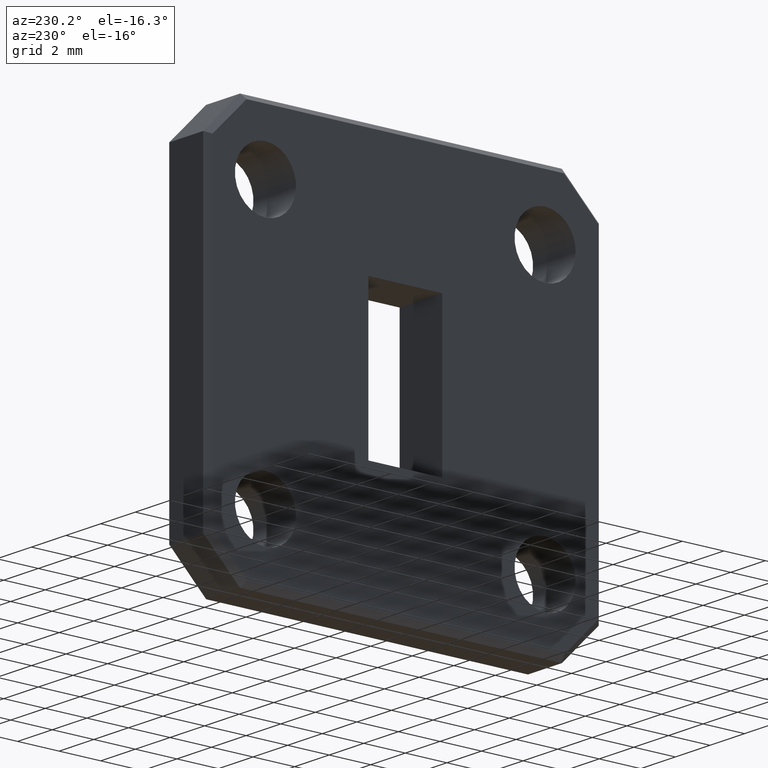
[diagram: clean part render]
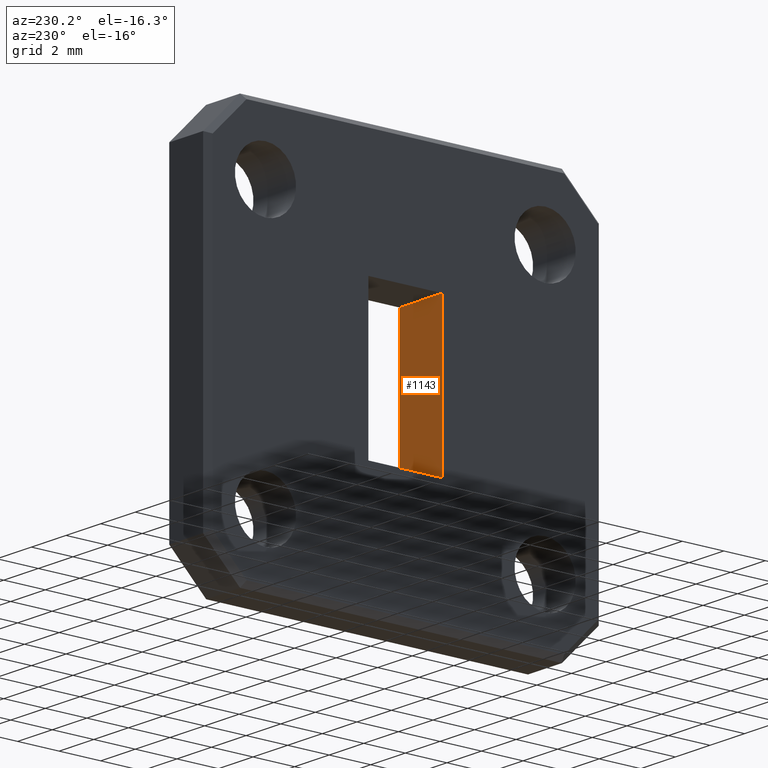
[diagram: same view with one face highlighted and labeled with its STEP entity id]
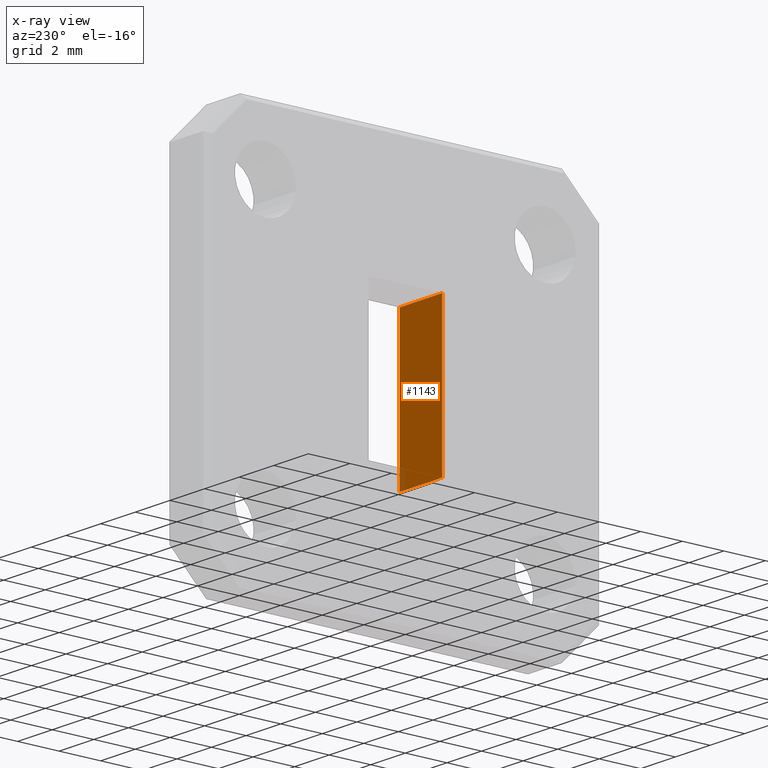
[diagram: x-ray of the same camera — body ghosted, the highlighted face saturated]
A machine part, auxiliary view. The second image highlights one B-rep face of the part: STEP entity #1143.
The next image is the same camera in x-ray: the body ghosted, the highlighted face saturated — about 2% of this face is hidden behind the body in this view.
In plain terms, the highlighted planar face has unit normal (0, -1, 0).
Its self-contained STEP definition (entity closure, byte-faithful):
#8 = PLANE ( 'NONE',  #599 ) ;
#71 = VERTEX_POINT ( 'NONE', #554 ) ;
#76 = ORIENTED_EDGE ( 'NONE', *, *, #826, .T. ) ;
#84 = EDGE_CURVE ( 'NONE', #1083, #568, #194, .T. ) ;
#98 = DIRECTION ( 'NONE',  ( 0.000000000000000000, 0.000000000000000000, 1.000000000000000000 ) ) ;
#115 = CARTESIAN_POINT ( 'NONE',  ( 0.09700000000000000289, -0.06999999999999997891, 0.1400000000000000133 ) ) ;
#167 = VECTOR ( 'NONE', #752, 39.37007874015748143 ) ;
#178 = FACE_OUTER_BOUND ( 'NONE', #306, .T. ) ;
#192 = EDGE_CURVE ( 'NONE', #71, #482, #450, .T. ) ;
#194 = LINE ( 'NONE', #906, #556 ) ;
#249 = CARTESIAN_POINT ( 'NONE',  ( 0.000000000000000000, -0.06999999999999999278, 0.1400000000000000133 ) ) ;
#271 = CARTESIAN_POINT ( 'NONE',  ( 0.09700000000000000289, -0.06999999999999997891, 0.1400000000000000133 ) ) ;
#306 = EDGE_LOOP ( 'NONE', ( #76, #357, #605, #491 ) ) ;
#320 = VECTOR ( 'NONE', #98, 39.37007874015748143 ) ;
#357 = ORIENTED_EDGE ( 'NONE', *, *, #84, .T. ) ;
#373 = CARTESIAN_POINT ( 'NONE',  ( -3.937007874019685528E-05, -0.06999999999999999278, -0.1399999999999999856 ) ) ;
#381 = LINE ( 'NONE', #115, #167 ) ;
#450 = LINE ( 'NONE', #373, #902 ) ;
#482 = VERTEX_POINT ( 'NONE', #794 ) ;
#491 = ORIENTED_EDGE ( 'NONE', *, *, #192, .F. ) ;
#554 = CARTESIAN_POINT ( 'NONE',  ( 0.000000000000000000, -0.06999999999999999278, -0.1399999999999999856 ) ) ;
#556 = VECTOR ( 'NONE', #743, 39.37007874015748143 ) ;
#568 = VERTEX_POINT ( 'NONE', #271 ) ;
#599 = AXIS2_PLACEMENT_3D ( 'NONE', #751, #1018, #763 ) ;
#605 = ORIENTED_EDGE ( 'NONE', *, *, #719, .T. ) ;
#719 = EDGE_CURVE ( 'NONE', #568, #482, #381, .T. ) ;
#743 = DIRECTION ( 'NONE',  ( 1.000000000000000000, 6.123233995736766036E-17, -0.000000000000000000 ) ) ;
#751 = CARTESIAN_POINT ( 'NONE',  ( -3.937007874019685528E-05, -0.06999999999999999278, 0.1400000000000000133 ) ) ;
#752 = DIRECTION ( 'NONE',  ( 0.000000000000000000, 0.000000000000000000, -1.000000000000000000 ) ) ;
#763 = DIRECTION ( 'NONE',  ( 1.000000000000000000, 6.123233995736767268E-17, 0.000000000000000000 ) ) ;
#794 = CARTESIAN_POINT ( 'NONE',  ( 0.09700000000000000289, -0.06999999999999997891, -0.1399999999999999856 ) ) ;
#826 = EDGE_CURVE ( 'NONE', #71, #1083, #1019, .T. ) ;
#902 = VECTOR ( 'NONE', #1003, 39.37007874015748143 ) ;
#906 = CARTESIAN_POINT ( 'NONE',  ( -3.937007874019685528E-05, -0.06999999999999999278, 0.1400000000000000133 ) ) ;
#919 = CARTESIAN_POINT ( 'NONE',  ( 0.000000000000000000, -0.06999999999999999278, 0.1400000000000000133 ) ) ;
#1003 = DIRECTION ( 'NONE',  ( 1.000000000000000000, 6.123233995736766036E-17, -0.000000000000000000 ) ) ;
#1018 = DIRECTION ( 'NONE',  ( 6.123233995736767268E-17, -1.000000000000000000, 0.000000000000000000 ) ) ;
#1019 = LINE ( 'NONE', #919, #320 ) ;
#1083 = VERTEX_POINT ( 'NONE', #249 ) ;
#1143 = ADVANCED_FACE ( 'NONE', ( #178 ), #8, .F. ) ;